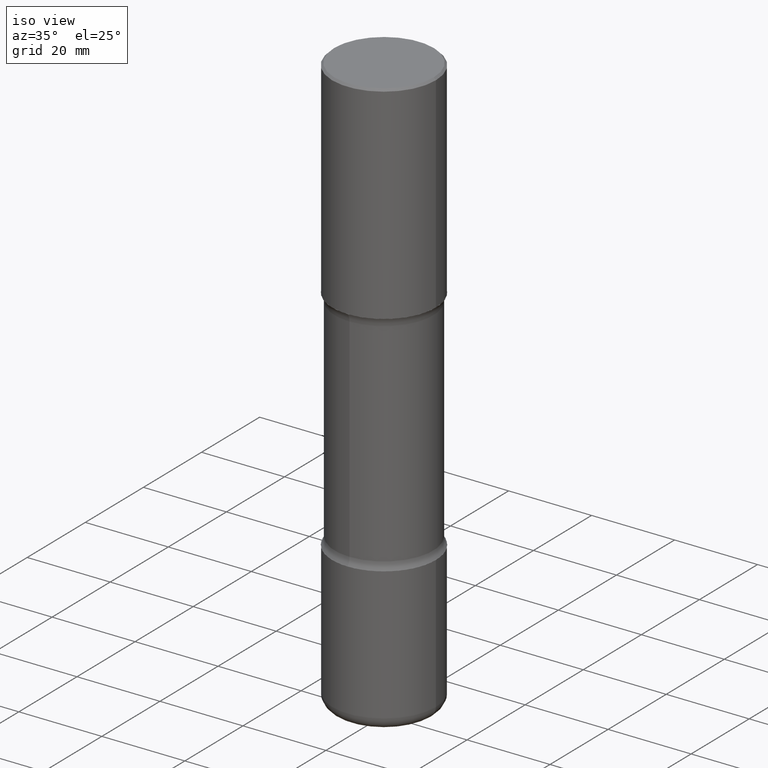
[diagram: clean part render]
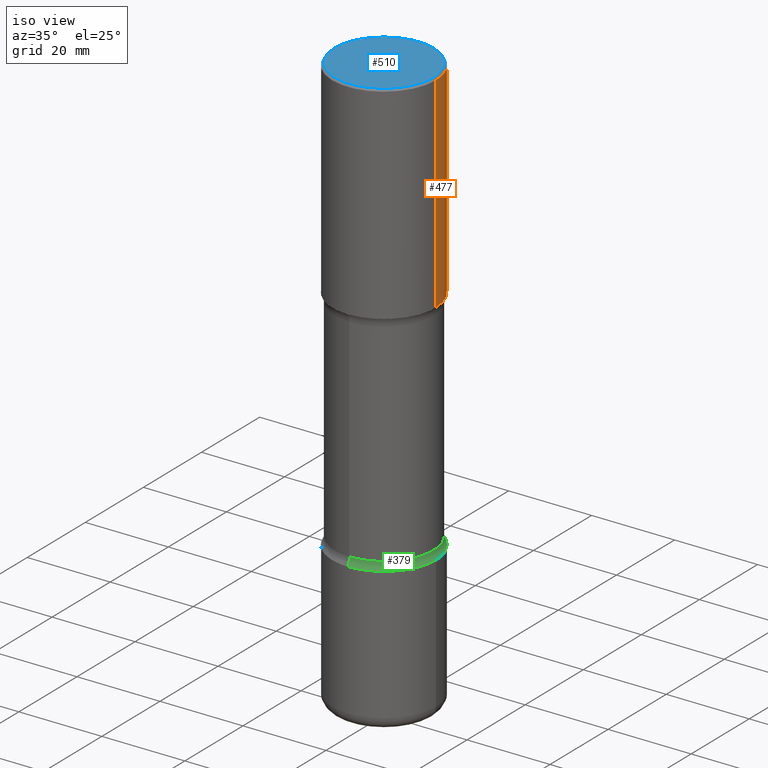
[diagram: same view with three faces highlighted in distinct colors, each labeled with its STEP entity id]
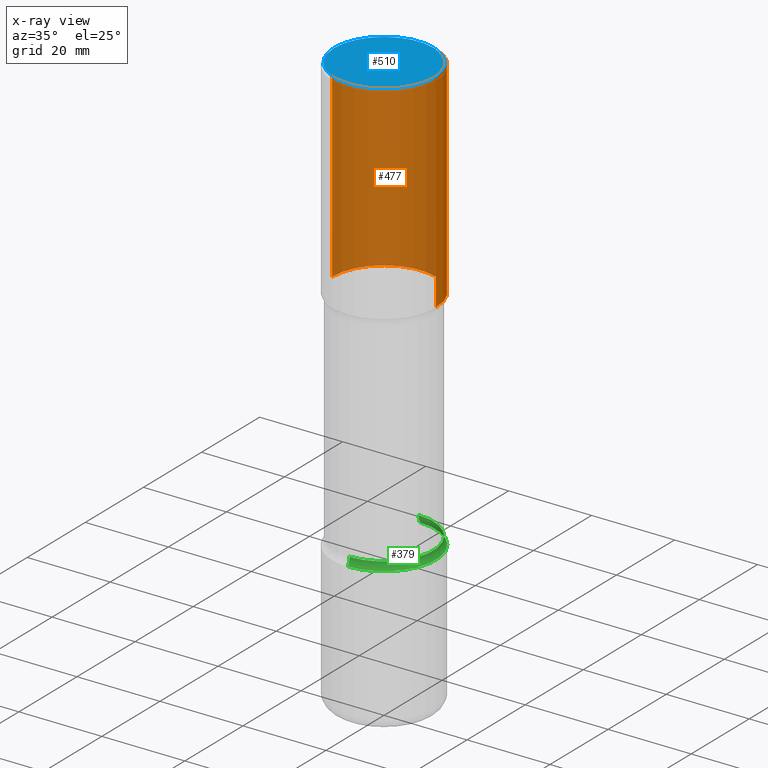
[diagram: x-ray of the same camera — body ghosted, the three highlighted faces saturated]
A machine part, iso view with three faces highlighted in distinct colors.
The next image is the same camera in x-ray (body ghosted, the three faces saturated) — at least one of them is partly hidden behind the body in this view.
Their STEP definitions:

[orange] entity #477 — the highlighted cylindrical surface (partial cylindrical patch) has radius 12.5006 mm, axis along (-0, 0, 1).
#3 = AXIS2_PLACEMENT_3D ( 'NONE', #272, #190, #344 ) ;
#14 = ORIENTED_EDGE ( 'NONE', *, *, #128, .T. ) ;
#18 = DIRECTION ( 'NONE',  ( 1.000000000000000000, -6.982962677686265922E-15, 0.000000000000000000 ) ) ;
#34 = VERTEX_POINT ( 'NONE', #130 ) ;
#78 = DIRECTION ( 'NONE',  ( 1.000000000000000000, -6.982962677686265922E-15, 4.876176775795935793E-29 ) ) ;
#84 = LINE ( 'NONE', #228, #415 ) ;
#87 = DIRECTION ( 'NONE',  ( -2.445468806185136877E-29, 3.491481338843145188E-15, 1.000000000000000000 ) ) ;
#97 = EDGE_CURVE ( 'NONE', #366, #235, #84, .T. ) ;
#128 = EDGE_CURVE ( 'NONE', #34, #366, #461, .T. ) ;
#129 = CARTESIAN_POINT ( 'NONE',  ( 0.000000000000000000, 0.000000000000000000, 0.000000000000000000 ) ) ;
#130 = CARTESIAN_POINT ( 'NONE',  ( 0.4921500000000000874, -1.030964609733602906E-14, -1.968500000000000139 ) ) ;
#133 = VERTEX_POINT ( 'NONE', #349 ) ;
#150 = AXIS2_PLACEMENT_3D ( 'NONE', #129, #296, #78 ) ;
#174 = FACE_OUTER_BOUND ( 'NONE', #509, .T. ) ;
#190 = DIRECTION ( 'NONE',  ( -2.445468806185136597E-29, 3.491481338843145583E-15, 1.000000000000000000 ) ) ;
#193 = VECTOR ( 'NONE', #419, 39.37007874015748143 ) ;
#218 = EDGE_CURVE ( 'NONE', #133, #235, #471, .T. ) ;
#228 = CARTESIAN_POINT ( 'NONE',  ( -0.4921499999999999764, 3.496936074043332897E-15, -2.420853904668951509E-29 ) ) ;
#235 = VERTEX_POINT ( 'NONE', #456 ) ;
#239 = ORIENTED_EDGE ( 'NONE', *, *, #97, .T. ) ;
#244 = LINE ( 'NONE', #554, #193 ) ;
#255 = CARTESIAN_POINT ( 'NONE',  ( -0.4921500000000000874, 2.553075289853658979E-17, -1.968500000000000139 ) ) ;
#272 = CARTESIAN_POINT ( 'NONE',  ( 4.813905344975441835E-29, -6.872981015512731707E-15, -1.968500000000000139 ) ) ;
#296 = DIRECTION ( 'NONE',  ( -2.445468806185136597E-29, 3.491481338843145583E-15, 1.000000000000000000 ) ) ;
#344 = DIRECTION ( 'NONE',  ( 1.000000000000000000, -6.982962677686265922E-15, 0.000000000000000000 ) ) ;
#349 = CARTESIAN_POINT ( 'NONE',  ( 0.4921499999999998098, -3.446223716380121560E-15, -0.02000000000000006981 ) ) ;
#366 = VERTEX_POINT ( 'NONE', #255 ) ;
#385 = ORIENTED_EDGE ( 'NONE', *, *, #513, .F. ) ;
#415 = VECTOR ( 'NONE', #87, 39.37007874015748143 ) ;
#419 = DIRECTION ( 'NONE',  ( -2.445468806185136877E-29, 3.491481338843145188E-15, 1.000000000000000000 ) ) ;
#456 = CARTESIAN_POINT ( 'NONE',  ( -0.4921499999999998098, 3.366835455046431295E-15, -0.02000000000000006981 ) ) ;
#459 = DIRECTION ( 'NONE',  ( -2.445468806185136597E-29, 3.491481338843145583E-15, 1.000000000000000000 ) ) ;
#461 = CIRCLE ( 'NONE', #3, 0.4921500000000000874 ) ;
#463 = CYLINDRICAL_SURFACE ( 'NONE', #150, 0.4921499999999999764 ) ;
#471 = CIRCLE ( 'NONE', #496, 0.4921499999999998098 ) ;
#477 = ADVANCED_FACE ( 'NONE', ( #174 ), #463, .T. ) ;
#490 = CARTESIAN_POINT ( 'NONE',  ( 4.890937612370289799E-31, -6.982962677686315028E-17, -0.02000000000000006981 ) ) ;
#496 = AXIS2_PLACEMENT_3D ( 'NONE', #490, #459, #18 ) ;
#509 = EDGE_LOOP ( 'NONE', ( #14, #239, #540, #385 ) ) ;
#513 = EDGE_CURVE ( 'NONE', #34, #133, #244, .T. ) ;
#540 = ORIENTED_EDGE ( 'NONE', *, *, #218, .F. ) ;
#554 = CARTESIAN_POINT ( 'NONE',  ( 0.4921499999999999764, -3.436665081823295777E-15, 2.399810400207969603E-29 ) ) ;

[blue] entity #510 — the highlighted planar face has unit normal (0, -0, -1).
#24 = DIRECTION ( 'NONE',  ( 2.438088387897960049E-29, -3.491481338843145188E-15, -1.000000000000000000 ) ) ;
#25 = EDGE_LOOP ( 'NONE', ( #116, #125 ) ) ;
#29 = AXIS2_PLACEMENT_3D ( 'NONE', #176, #126, #294 ) ;
#68 = CARTESIAN_POINT ( 'NONE',  ( 3.297005828269569180E-15, 0.4721499999999997921, -1.637831632909539243E-15 ) ) ;
#70 = CARTESIAN_POINT ( 'NONE',  ( -5.219257071676102792E-46, 7.451715851902241201E-32, 2.134256245050207180E-17 ) ) ;
#116 = ORIENTED_EDGE ( 'NONE', *, *, #520, .T. ) ;
#125 = ORIENTED_EDGE ( 'NONE', *, *, #402, .T. ) ;
#126 = DIRECTION ( 'NONE',  ( -2.445468806185136597E-29, 3.491481338843145583E-15, 1.000000000000000000 ) ) ;
#167 = FACE_OUTER_BOUND ( 'NONE', #25, .T. ) ;
#176 = CARTESIAN_POINT ( 'NONE',  ( -5.219257071676102792E-46, 7.451715851902241201E-32, 2.134256245050207180E-17 ) ) ;
#211 = AXIS2_PLACEMENT_3D ( 'NONE', #68, #24, #515 ) ;
#219 = CIRCLE ( 'NONE', #29, 0.4721499999999997921 ) ;
#226 = CIRCLE ( 'NONE', #462, 0.4721499999999997921 ) ;
#246 = DIRECTION ( 'NONE',  ( -2.445468806185136597E-29, 3.491481338843145583E-15, 1.000000000000000000 ) ) ;
#253 = CARTESIAN_POINT ( 'NONE',  ( 0.4721499999999997921, -3.342703923013974185E-15, 2.134256245052528773E-17 ) ) ;
#269 = DIRECTION ( 'NONE',  ( 1.000000000000000000, -6.982962677686265922E-15, 4.876408284878641364E-29 ) ) ;
#294 = DIRECTION ( 'NONE',  ( 1.000000000000000000, -6.982962677686265922E-15, 4.876408284878641364E-29 ) ) ;
#297 = VERTEX_POINT ( 'NONE', #446 ) ;
#331 = PLANE ( 'NONE',  #211 ) ;
#402 = EDGE_CURVE ( 'NONE', #467, #297, #219, .T. ) ;
#446 = CARTESIAN_POINT ( 'NONE',  ( -0.4721499999999997921, 3.331920641658000435E-15, 2.134256245047889285E-17 ) ) ;
#462 = AXIS2_PLACEMENT_3D ( 'NONE', #70, #246, #269 ) ;
#467 = VERTEX_POINT ( 'NONE', #253 ) ;
#510 = ADVANCED_FACE ( 'NONE', ( #167 ), #331, .F. ) ;
#515 = DIRECTION ( 'NONE',  ( -1.000000000000000000, 6.982962677686265922E-15, -4.876176775795935793E-29 ) ) ;
#520 = EDGE_CURVE ( 'NONE', #297, #467, #226, .T. ) ;

[green] entity #379 — the highlighted toroidal blend (fillet) surface has major radius 15.0495 mm and minor (blend) radius 3.175 mm.
#38 = AXIS2_PLACEMENT_3D ( 'NONE', #44, #433, #41 ) ;
#41 = DIRECTION ( 'NONE',  ( -6.982962677686264344E-15, -1.000000000000000000, 0.000000000000000000 ) ) ;
#44 = CARTESIAN_POINT ( 'NONE',  ( 4.137405386529213527E-15, 0.5924999999999860378, -4.059268949423749717 ) ) ;
#76 = TOROIDAL_SURFACE ( 'NONE', #306, 0.5925000000000002487, 0.1250000000000000833 ) ;
#77 = EDGE_CURVE ( 'NONE', #247, #120, #261, .T. ) ;
#86 = AXIS2_PLACEMENT_3D ( 'NONE', #377, #328, #503 ) ;
#99 = CARTESIAN_POINT ( 'NONE',  ( -3.376394089603157682E-15, -0.4921500000000144648, -4.133799999999998143 ) ) ;
#107 = CIRCLE ( 'NONE', #38, 0.1250000000000001110 ) ;
#120 = VERTEX_POINT ( 'NONE', #99 ) ;
#144 = DIRECTION ( 'NONE',  ( 6.982962677686266711E-15, 1.000000000000000000, -3.330506545156064679E-15 ) ) ;
#162 = ORIENTED_EDGE ( 'NONE', *, *, #455, .T. ) ;
#178 = CIRCLE ( 'NONE', #86, 0.4674999999999999156 ) ;
#183 = EDGE_CURVE ( 'NONE', #247, #414, #107, .T. ) ;
#184 = DIRECTION ( 'NONE',  ( 6.860497997771531562E-15, 1.000000000000000000, 0.000000000000000000 ) ) ;
#185 = AXIS2_PLACEMENT_3D ( 'NONE', #560, #394, #184 ) ;
#205 = EDGE_CURVE ( 'NONE', #120, #290, #423, .T. ) ;
#212 = FACE_OUTER_BOUND ( 'NONE', #504, .T. ) ;
#247 = VERTEX_POINT ( 'NONE', #499 ) ;
#254 = ORIENTED_EDGE ( 'NONE', *, *, #77, .F. ) ;
#261 = CIRCLE ( 'NONE', #479, 0.4921500000000001984 ) ;
#290 = VERTEX_POINT ( 'NONE', #417 ) ;
#299 = CARTESIAN_POINT ( 'NONE',  ( 9.926815591731684962E-29, -1.417286178625843449E-14, -4.059268949423747053 ) ) ;
#306 = AXIS2_PLACEMENT_3D ( 'NONE', #299, #468, #549 ) ;
#321 = ORIENTED_EDGE ( 'NONE', *, *, #183, .T. ) ;
#328 = DIRECTION ( 'NONE',  ( 2.569765813720951550E-29, -3.313480949505536246E-15, -1.000000000000000000 ) ) ;
#333 = ORIENTED_EDGE ( 'NONE', *, *, #205, .F. ) ;
#337 = CARTESIAN_POINT ( 'NONE',  ( 3.264535051818428216E-15, 0.4674999999999857048, -4.059268949423748829 ) ) ;
#377 = CARTESIAN_POINT ( 'NONE',  ( 9.917551605176555751E-29, -1.418612834227874970E-14, -4.059268949423747053 ) ) ;
#379 = ADVANCED_FACE ( 'NONE', ( #212 ), #76, .F. ) ;
#394 = DIRECTION ( 'NONE',  ( 1.000000000000000000, -6.860497997771530774E-15, 4.842978755694635864E-29 ) ) ;
#414 = VERTEX_POINT ( 'NONE', #337 ) ;
#417 = CARTESIAN_POINT ( 'NONE',  ( -3.291838451780624078E-15, -0.4675000000000141265, -4.059268949423745276 ) ) ;
#423 = CIRCLE ( 'NONE', #185, 0.1250000000000001110 ) ;
#433 = DIRECTION ( 'NONE',  ( -1.000000000000000000, 6.982962677686265922E-15, -4.883557194083112340E-29 ) ) ;
#438 = DIRECTION ( 'NONE',  ( 2.569765813720951550E-29, -3.313480949505536246E-15, -1.000000000000000000 ) ) ;
#443 = CARTESIAN_POINT ( 'NONE',  ( 1.010907895100811684E-28, -1.443308555850979562E-14, -4.133799999999999919 ) ) ;
#455 = EDGE_CURVE ( 'NONE', #414, #290, #178, .T. ) ;
#468 = DIRECTION ( 'NONE',  ( 2.569765813720951550E-29, -3.313480949505536246E-15, -1.000000000000000000 ) ) ;
#479 = AXIS2_PLACEMENT_3D ( 'NONE', #443, #438, #144 ) ;
#499 = CARTESIAN_POINT ( 'NONE',  ( 3.436665081823397540E-15, 0.4921499999999855990, -4.133800000000001695 ) ) ;
#503 = DIRECTION ( 'NONE',  ( 6.982962677686266711E-15, 1.000000000000000000, -3.506115072082477581E-15 ) ) ;
#504 = EDGE_LOOP ( 'NONE', ( #333, #254, #321, #162 ) ) ;
#549 = DIRECTION ( 'NONE',  ( 6.982962677686265133E-15, 1.000000000000000000, -3.313480949505536246E-15 ) ) ;
#560 = CARTESIAN_POINT ( 'NONE',  ( -4.064845063679534285E-15, -0.5925000000000144595, -4.059268949423745276 ) ) ;